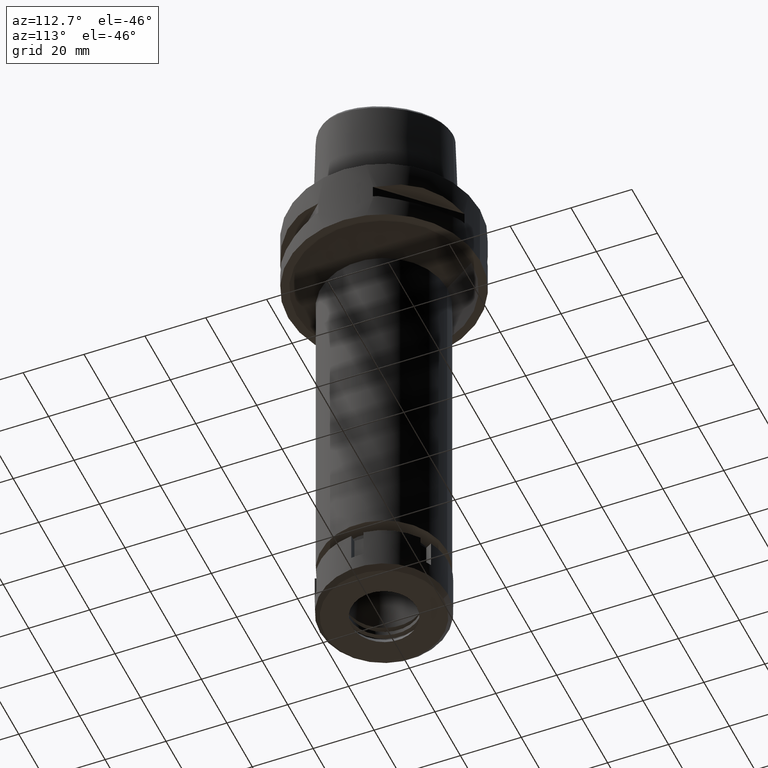
[diagram: clean part render]
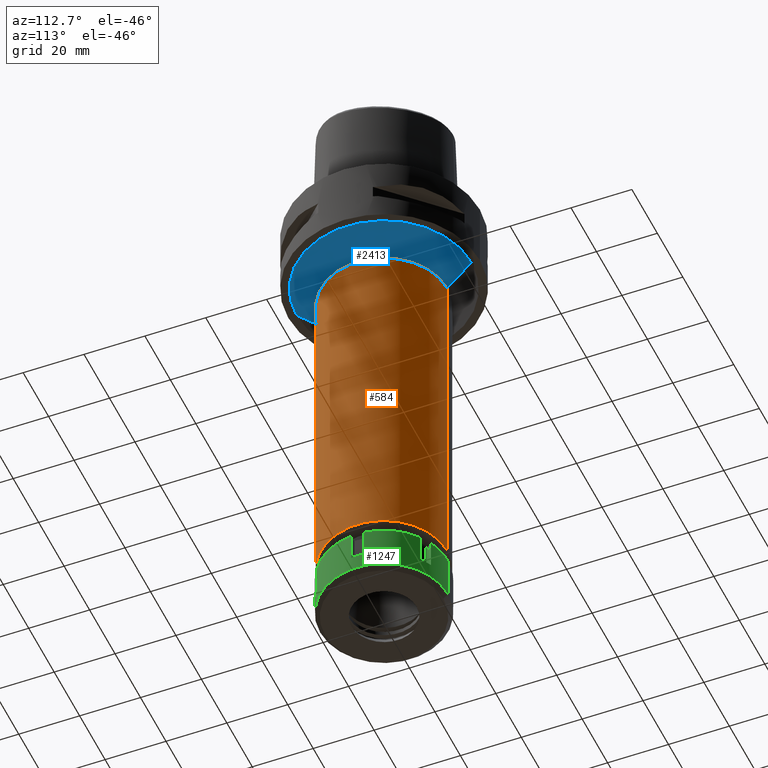
[diagram: same view with three faces highlighted in distinct colors, each labeled with its STEP entity id]
A machine part, auxiliary view with three faces highlighted in distinct colors.
Their STEP definitions:

[orange] entity #584 — the highlighted cylindrical surface (partial cylindrical patch) has radius 20.75 mm, axis along (0, 0, -1).
#584 = ADVANCED_FACE ( 'NONE', ( #4524 ), #4891, .T. ) ;
#853 = VECTOR ( 'NONE', #5563, 1000.000000000000000 ) ;
#879 = EDGE_CURVE ( 'NONE', #4517, #3945, #2536, .T. ) ;
#970 = ORIENTED_EDGE ( 'NONE', *, *, #2528, .T. ) ;
#1018 = CARTESIAN_POINT ( 'NONE',  ( 0.0000000000000000000, 1.320781572880000066E-14, 7.849999999999999645 ) ) ;
#1256 = DIRECTION ( 'NONE',  ( 0.0000000000000000000, 0.0000000000000000000, 1.000000000000000000 ) ) ;
#1379 = CARTESIAN_POINT ( 'NONE',  ( 0.0000000000000000000, 20.75000000000000000, -30.00000000000000000 ) ) ;
#1509 = CARTESIAN_POINT ( 'NONE',  ( 0.0000000000000000000, -20.75000000000000000, -30.00000000000000000 ) ) ;
#1637 = VERTEX_POINT ( 'NONE', #4268 ) ;
#1687 = DIRECTION ( 'NONE',  ( 0.0000000000000000000, 0.0000000000000000000, -1.000000000000000000 ) ) ;
#1725 = ORIENTED_EDGE ( 'NONE', *, *, #4151, .T. ) ;
#2013 = CIRCLE ( 'NONE', #5169, 20.75000000000000000 ) ;
#2153 = CARTESIAN_POINT ( 'NONE',  ( 0.0000000000000000000, 20.75000000000000000, -144.5000000000000000 ) ) ;
#2271 = VERTEX_POINT ( 'NONE', #3179 ) ;
#2486 = ORIENTED_EDGE ( 'NONE', *, *, #2988, .T. ) ;
#2528 = EDGE_CURVE ( 'NONE', #1637, #2271, #5379, .T. ) ;
#2536 = LINE ( 'NONE', #3003, #5241 ) ;
#2745 = DIRECTION ( 'NONE',  ( 0.0000000000000000000, -1.000000000000000000, 0.0000000000000000000 ) ) ;
#2988 = EDGE_CURVE ( 'NONE', #2271, #3945, #2013, .T. ) ;
#3003 = CARTESIAN_POINT ( 'NONE',  ( 0.0000000000000000000, 20.75000000000000000, -30.00000000000000000 ) ) ;
#3179 = CARTESIAN_POINT ( 'NONE',  ( 0.0000000000000000000, -20.75000000000000000, -144.5000000000000000 ) ) ;
#3397 = CIRCLE ( 'NONE', #4201, 20.75000000000000000 ) ;
#3505 = DIRECTION ( 'NONE',  ( 0.0000000000000000000, -1.000000000000000000, 0.0000000000000000000 ) ) ;
#3838 = CARTESIAN_POINT ( 'NONE',  ( 0.0000000000000000000, 1.320781572880000066E-14, -144.5000000000000000 ) ) ;
#3945 = VERTEX_POINT ( 'NONE', #2153 ) ;
#4151 = EDGE_CURVE ( 'NONE', #4517, #1637, #3397, .T. ) ;
#4180 = AXIS2_PLACEMENT_3D ( 'NONE', #1018, #4923, #2745 ) ;
#4201 = AXIS2_PLACEMENT_3D ( 'NONE', #4651, #4736, #5500 ) ;
#4268 = CARTESIAN_POINT ( 'NONE',  ( 0.0000000000000000000, -20.75000000000000000, -30.00000000000000000 ) ) ;
#4370 = EDGE_LOOP ( 'NONE', ( #1725, #970, #2486, #5028 ) ) ;
#4517 = VERTEX_POINT ( 'NONE', #1379 ) ;
#4524 = FACE_OUTER_BOUND ( 'NONE', #4370, .T. ) ;
#4651 = CARTESIAN_POINT ( 'NONE',  ( 0.0000000000000000000, 0.0000000000000000000, -30.00000000000000000 ) ) ;
#4736 = DIRECTION ( 'NONE',  ( 0.0000000000000000000, 0.0000000000000000000, -1.000000000000000000 ) ) ;
#4891 = CYLINDRICAL_SURFACE ( 'NONE', #4180, 20.75000000000000000 ) ;
#4923 = DIRECTION ( 'NONE',  ( 0.0000000000000000000, 0.0000000000000000000, -1.000000000000000000 ) ) ;
#5028 = ORIENTED_EDGE ( 'NONE', *, *, #879, .F. ) ;
#5169 = AXIS2_PLACEMENT_3D ( 'NONE', #3838, #1256, #3505 ) ;
#5241 = VECTOR ( 'NONE', #1687, 1000.000000000000000 ) ;
#5379 = LINE ( 'NONE', #1509, #853 ) ;
#5500 = DIRECTION ( 'NONE',  ( 0.0000000000000000000, 1.000000000000000000, 0.0000000000000000000 ) ) ;
#5563 = DIRECTION ( 'NONE',  ( 0.0000000000000000000, 0.0000000000000000000, -1.000000000000000000 ) ) ;

[blue] entity #2413 — the highlighted conical surface has half-angle 45 deg.
#175 = CARTESIAN_POINT ( 'NONE',  ( 0.0000000000000000000, 0.0000000000000000000, -22.00000000000000000 ) ) ;
#572 = AXIS2_PLACEMENT_3D ( 'NONE', #175, #1901, #1814 ) ;
#646 = EDGE_LOOP ( 'NONE', ( #4631, #4664, #4674, #5311 ) ) ;
#933 = EDGE_CURVE ( 'NONE', #3486, #4517, #5400, .T. ) ;
#1379 = CARTESIAN_POINT ( 'NONE',  ( 0.0000000000000000000, 20.75000000000000000, -30.00000000000000000 ) ) ;
#1393 = DIRECTION ( 'NONE',  ( 0.0000000000000000000, 1.000000000000000000, 0.0000000000000000000 ) ) ;
#1637 = VERTEX_POINT ( 'NONE', #4268 ) ;
#1726 = DIRECTION ( 'NONE',  ( 0.0000000000000000000, 0.7071067811865474617, -0.7071067811865474617 ) ) ;
#1814 = DIRECTION ( 'NONE',  ( 0.0000000000000000000, 1.000000000000000000, 0.0000000000000000000 ) ) ;
#1823 = AXIS2_PLACEMENT_3D ( 'NONE', #3171, #2735, #1393 ) ;
#1901 = DIRECTION ( 'NONE',  ( 0.0000000000000000000, 0.0000000000000000000, -1.000000000000000000 ) ) ;
#2413 = ADVANCED_FACE ( 'NONE', ( #5350 ), #3386, .T. ) ;
#2473 = DIRECTION ( 'NONE',  ( 0.0000000000000000000, -0.7071067811865474617, -0.7071067811865474617 ) ) ;
#2735 = DIRECTION ( 'NONE',  ( 0.0000000000000000000, 0.0000000000000000000, 1.000000000000000000 ) ) ;
#2773 = EDGE_CURVE ( 'NONE', #3486, #4514, #3111, .T. ) ;
#3111 = CIRCLE ( 'NONE', #572, 28.75000000000000000 ) ;
#3171 = CARTESIAN_POINT ( 'NONE',  ( 0.0000000000000000000, 0.0000000000000000000, -26.00000000000000000 ) ) ;
#3386 = CONICAL_SURFACE ( 'NONE', #1823, 24.75000000000000000, 0.7853981633972997312 ) ;
#3397 = CIRCLE ( 'NONE', #4201, 20.75000000000000000 ) ;
#3486 = VERTEX_POINT ( 'NONE', #3858 ) ;
#3858 = CARTESIAN_POINT ( 'NONE',  ( 0.0000000000000000000, 28.75000000000000000, -22.00000000000000000 ) ) ;
#3943 = CARTESIAN_POINT ( 'NONE',  ( 0.0000000000000000000, -28.75000000000000000, -22.00000000000000000 ) ) ;
#4151 = EDGE_CURVE ( 'NONE', #4517, #1637, #3397, .T. ) ;
#4201 = AXIS2_PLACEMENT_3D ( 'NONE', #4651, #4736, #5500 ) ;
#4268 = CARTESIAN_POINT ( 'NONE',  ( 0.0000000000000000000, -20.75000000000000000, -30.00000000000000000 ) ) ;
#4364 = EDGE_CURVE ( 'NONE', #4514, #1637, #5063, .T. ) ;
#4514 = VERTEX_POINT ( 'NONE', #3943 ) ;
#4517 = VERTEX_POINT ( 'NONE', #1379 ) ;
#4631 = ORIENTED_EDGE ( 'NONE', *, *, #2773, .T. ) ;
#4651 = CARTESIAN_POINT ( 'NONE',  ( 0.0000000000000000000, 0.0000000000000000000, -30.00000000000000000 ) ) ;
#4664 = ORIENTED_EDGE ( 'NONE', *, *, #4364, .T. ) ;
#4674 = ORIENTED_EDGE ( 'NONE', *, *, #4151, .F. ) ;
#4736 = DIRECTION ( 'NONE',  ( 0.0000000000000000000, 0.0000000000000000000, -1.000000000000000000 ) ) ;
#5063 = LINE ( 'NONE', #5476, #5360 ) ;
#5311 = ORIENTED_EDGE ( 'NONE', *, *, #933, .F. ) ;
#5350 = FACE_OUTER_BOUND ( 'NONE', #646, .T. ) ;
#5360 = VECTOR ( 'NONE', #1726, 1000.000000000000114 ) ;
#5400 = LINE ( 'NONE', #5482, #5503 ) ;
#5476 = CARTESIAN_POINT ( 'NONE',  ( 0.0000000000000000000, -28.75000000000000000, -22.00000000000000000 ) ) ;
#5482 = CARTESIAN_POINT ( 'NONE',  ( 0.0000000000000000000, 28.75000000000000000, -22.00000000000000000 ) ) ;
#5500 = DIRECTION ( 'NONE',  ( 0.0000000000000000000, 1.000000000000000000, 0.0000000000000000000 ) ) ;
#5503 = VECTOR ( 'NONE', #2473, 1000.000000000000114 ) ;

[green] entity #1247 — the highlighted cylindrical surface (partial cylindrical patch) has radius 21 mm, axis along (0, 0, -1).
#18 = ORIENTED_EDGE ( 'NONE', *, *, #2069, .F. ) ;
#29 = CIRCLE ( 'NONE', #1023, 20.99999999999999645 ) ;
#77 = DIRECTION ( 'NONE',  ( 0.0000000000000000000, -1.000000000000000000, 0.0000000000000000000 ) ) ;
#94 = VERTEX_POINT ( 'NONE', #2562 ) ;
#164 = DIRECTION ( 'NONE',  ( 0.4152486510768949035, -0.9097079519157886818, 0.0000000000000000000 ) ) ;
#168 = CARTESIAN_POINT ( 'NONE',  ( 12.18432328774999895, 17.10386699022999935, 0.0000000000000000000 ) ) ;
#170 = VERTEX_POINT ( 'NONE', #896 ) ;
#180 = DIRECTION ( 'NONE',  ( 0.9954545219222313834, 0.09523809523810303213, 0.0000000000000000000 ) ) ;
#190 = CARTESIAN_POINT ( 'NONE',  ( 0.0000000000000000000, 0.0000000000000000000, -9.500000000000000000 ) ) ;
#218 = VECTOR ( 'NONE', #728, 1000.000000000000000 ) ;
#300 = AXIS2_PLACEMENT_3D ( 'NONE', #190, #5306, #4975 ) ;
#307 = ORIENTED_EDGE ( 'NONE', *, *, #4176, .T. ) ;
#343 = ORIENTED_EDGE ( 'NONE', *, *, #1764, .F. ) ;
#435 = CARTESIAN_POINT ( 'NONE',  ( 0.0000000000000000000, 0.0000000000000000000, 0.0000000000000000000 ) ) ;
#462 = CARTESIAN_POINT ( 'NONE',  ( 0.0000000000000000000, 0.0000000000000000000, -9.500000000000000000 ) ) ;
#681 = AXIS2_PLACEMENT_3D ( 'NONE', #435, #3835, #1648 ) ;
#728 = DIRECTION ( 'NONE',  ( 0.0000000000000000000, 0.0000000000000000000, -1.000000000000000000 ) ) ;
#744 = VERTEX_POINT ( 'NONE', #850 ) ;
#751 = EDGE_CURVE ( 'NONE', #744, #1508, #5542, .T. ) ;
#806 = CARTESIAN_POINT ( 'NONE',  ( 12.18432328774999895, -17.10386699022999935, 0.0000000000000000000 ) ) ;
#850 = CARTESIAN_POINT ( 'NONE',  ( 0.0000000000000000000, 21.00000000000000000, 0.0000000000000000000 ) ) ;
#896 = CARTESIAN_POINT ( 'NONE',  ( 8.720221672615000585, 19.10386699022999935, 0.0000000000000000000 ) ) ;
#1005 = CARTESIAN_POINT ( 'NONE',  ( 0.0000000000000000000, -21.00000000000000000, -14.50000000000000000 ) ) ;
#1023 = AXIS2_PLACEMENT_3D ( 'NONE', #3052, #1729, #2185 ) ;
#1104 = CARTESIAN_POINT ( 'NONE',  ( 20.90454496036999998, 2.000000000000000000, -9.500000000000000000 ) ) ;
#1107 = CIRCLE ( 'NONE', #4276, 20.99999999999999289 ) ;
#1247 = ADVANCED_FACE ( 'NONE', ( #3959 ), #3936, .T. ) ;
#1273 = CARTESIAN_POINT ( 'NONE',  ( 12.18432328774999895, -17.10386699022999935, -9.500000000000000000 ) ) ;
#1330 = VERTEX_POINT ( 'NONE', #1372 ) ;
#1372 = CARTESIAN_POINT ( 'NONE',  ( 20.90454496036999998, -2.000000000000000000, -9.500000000000000000 ) ) ;
#1380 = VERTEX_POINT ( 'NONE', #806 ) ;
#1389 = EDGE_CURVE ( 'NONE', #4606, #1380, #4986, .T. ) ;
#1450 = CARTESIAN_POINT ( 'NONE',  ( 8.720221672615000585, -19.10386699022999935, 0.0000000000000000000 ) ) ;
#1508 = VERTEX_POINT ( 'NONE', #4693 ) ;
#1554 = VECTOR ( 'NONE', #4036, 1000.000000000000000 ) ;
#1562 = CIRCLE ( 'NONE', #4457, 21.00000000000000711 ) ;
#1648 = DIRECTION ( 'NONE',  ( 0.0000000000000000000, 1.000000000000000000, 0.0000000000000000000 ) ) ;
#1665 = CARTESIAN_POINT ( 'NONE',  ( 0.0000000000000000000, 0.0000000000000000000, 0.0000000000000000000 ) ) ;
#1729 = DIRECTION ( 'NONE',  ( 0.0000000000000000000, 0.0000000000000000000, -1.000000000000000000 ) ) ;
#1764 = EDGE_CURVE ( 'NONE', #4606, #1330, #4880, .T. ) ;
#1773 = CARTESIAN_POINT ( 'NONE',  ( 8.720221672615000585, 19.10386699022999935, -9.500000000000000000 ) ) ;
#1871 = ORIENTED_EDGE ( 'NONE', *, *, #4533, .T. ) ;
#1874 = VERTEX_POINT ( 'NONE', #1005 ) ;
#2069 = EDGE_CURVE ( 'NONE', #3116, #170, #3041, .T. ) ;
#2095 = DIRECTION ( 'NONE',  ( 0.0000000000000000000, 0.0000000000000000000, 1.000000000000000000 ) ) ;
#2096 = AXIS2_PLACEMENT_3D ( 'NONE', #3601, #5276, #164 ) ;
#2185 = DIRECTION ( 'NONE',  ( 0.5802058708454290725, 0.8144698566776411575, 0.0000000000000000000 ) ) ;
#2241 = EDGE_CURVE ( 'NONE', #3105, #3848, #3738, .T. ) ;
#2257 = EDGE_CURVE ( 'NONE', #4937, #3733, #2831, .T. ) ;
#2380 = DIRECTION ( 'NONE',  ( 0.0000000000000000000, 0.0000000000000000000, 1.000000000000000000 ) ) ;
#2417 = EDGE_CURVE ( 'NONE', #3902, #1330, #1107, .T. ) ;
#2562 = CARTESIAN_POINT ( 'NONE',  ( 20.90454496036999998, 2.000000000000000000, 0.0000000000000000000 ) ) ;
#2669 = VECTOR ( 'NONE', #2380, 1000.000000000000000 ) ;
#2736 = VECTOR ( 'NONE', #4757, 1000.000000000000000 ) ;
#2798 = CARTESIAN_POINT ( 'NONE',  ( 8.720221672615000585, -19.10386699022999935, -9.500000000000000000 ) ) ;
#2821 = ORIENTED_EDGE ( 'NONE', *, *, #751, .F. ) ;
#2831 = CIRCLE ( 'NONE', #300, 21.00000000000000711 ) ;
#2852 = EDGE_CURVE ( 'NONE', #3330, #94, #29, .T. ) ;
#2898 = LINE ( 'NONE', #3385, #5254 ) ;
#2907 = EDGE_CURVE ( 'NONE', #3116, #5544, #1562, .T. ) ;
#2925 = AXIS2_PLACEMENT_3D ( 'NONE', #1665, #3822, #5109 ) ;
#2938 = DIRECTION ( 'NONE',  ( 0.4152486510768949035, 0.9097079519157886818, 0.0000000000000000000 ) ) ;
#2942 = ORIENTED_EDGE ( 'NONE', *, *, #2852, .T. ) ;
#2946 = ORIENTED_EDGE ( 'NONE', *, *, #2257, .T. ) ;
#3041 = LINE ( 'NONE', #1773, #2736 ) ;
#3052 = CARTESIAN_POINT ( 'NONE',  ( 0.0000000000000000000, 0.0000000000000000000, 0.0000000000000000000 ) ) ;
#3069 = CARTESIAN_POINT ( 'NONE',  ( 20.90454496036999998, 2.000000000000000000, -9.500000000000000000 ) ) ;
#3105 = VERTEX_POINT ( 'NONE', #3967 ) ;
#3116 = VERTEX_POINT ( 'NONE', #5207 ) ;
#3121 = CIRCLE ( 'NONE', #681, 21.00000000000000000 ) ;
#3130 = DIRECTION ( 'NONE',  ( 0.0000000000000000000, 0.0000000000000000000, -1.000000000000000000 ) ) ;
#3148 = LINE ( 'NONE', #1450, #5095 ) ;
#3185 = EDGE_LOOP ( 'NONE', ( #4765, #2942, #4451, #4694, #343, #4709, #5010, #2946, #5020, #5086, #1871, #307, #2821, #4220, #18, #4182 ) ) ;
#3300 = LINE ( 'NONE', #168, #218 ) ;
#3304 = CIRCLE ( 'NONE', #3927, 21.00000000000000000 ) ;
#3330 = VERTEX_POINT ( 'NONE', #4642 ) ;
#3343 = EDGE_CURVE ( 'NONE', #4937, #1380, #2898, .T. ) ;
#3385 = CARTESIAN_POINT ( 'NONE',  ( 12.18432328774999895, -17.10386699022999935, -9.500000000000000000 ) ) ;
#3453 = DIRECTION ( 'NONE',  ( 0.0000000000000000000, 0.0000000000000000000, -1.000000000000000000 ) ) ;
#3601 = CARTESIAN_POINT ( 'NONE',  ( 0.0000000000000000000, 0.0000000000000000000, 0.0000000000000000000 ) ) ;
#3642 = CARTESIAN_POINT ( 'NONE',  ( 20.90454496036999998, -2.000000000000000000, 0.0000000000000000000 ) ) ;
#3717 = EDGE_CURVE ( 'NONE', #3105, #3733, #3148, .T. ) ;
#3733 = VERTEX_POINT ( 'NONE', #2798 ) ;
#3738 = CIRCLE ( 'NONE', #2096, 21.00000000000000711 ) ;
#3757 = VECTOR ( 'NONE', #3130, 1000.000000000000000 ) ;
#3822 = DIRECTION ( 'NONE',  ( 0.0000000000000000000, 0.0000000000000000000, -1.000000000000000000 ) ) ;
#3835 = DIRECTION ( 'NONE',  ( 0.0000000000000000000, 0.0000000000000000000, -1.000000000000000000 ) ) ;
#3848 = VERTEX_POINT ( 'NONE', #4544 ) ;
#3850 = CARTESIAN_POINT ( 'NONE',  ( 0.0000000000000000000, 21.00000000000000000, 0.0000000000000000000 ) ) ;
#3890 = DIRECTION ( 'NONE',  ( 0.0000000000000000000, -1.000000000000000000, 0.0000000000000000000 ) ) ;
#3902 = VERTEX_POINT ( 'NONE', #3069 ) ;
#3910 = VECTOR ( 'NONE', #3453, 1000.000000000000000 ) ;
#3918 = DIRECTION ( 'NONE',  ( 0.0000000000000000000, 0.0000000000000000000, -1.000000000000000000 ) ) ;
#3927 = AXIS2_PLACEMENT_3D ( 'NONE', #5172, #2095, #3890 ) ;
#3936 = CYLINDRICAL_SURFACE ( 'NONE', #4632, 21.00000000000000000 ) ;
#3959 = FACE_OUTER_BOUND ( 'NONE', #3185, .T. ) ;
#3966 = CARTESIAN_POINT ( 'NONE',  ( 20.90454496036999998, -2.000000000000000000, 0.0000000000000000000 ) ) ;
#3967 = CARTESIAN_POINT ( 'NONE',  ( 8.720221672615000585, -19.10386699022999935, 0.0000000000000000000 ) ) ;
#4022 = LINE ( 'NONE', #4815, #3757 ) ;
#4036 = DIRECTION ( 'NONE',  ( 0.0000000000000000000, 0.0000000000000000000, -1.000000000000000000 ) ) ;
#4038 = DIRECTION ( 'NONE',  ( 0.0000000000000000000, 0.0000000000000000000, -1.000000000000000000 ) ) ;
#4043 = CARTESIAN_POINT ( 'NONE',  ( 12.18432328774999895, 17.10386699022999935, -9.500000000000000000 ) ) ;
#4176 = EDGE_CURVE ( 'NONE', #1874, #1508, #3304, .T. ) ;
#4182 = ORIENTED_EDGE ( 'NONE', *, *, #2907, .T. ) ;
#4220 = ORIENTED_EDGE ( 'NONE', *, *, #4265, .T. ) ;
#4247 = DIRECTION ( 'NONE',  ( 0.0000000000000000000, 0.0000000000000000000, 1.000000000000000000 ) ) ;
#4265 = EDGE_CURVE ( 'NONE', #744, #170, #3121, .T. ) ;
#4276 = AXIS2_PLACEMENT_3D ( 'NONE', #4407, #4038, #180 ) ;
#4407 = CARTESIAN_POINT ( 'NONE',  ( 0.0000000000000000000, 0.0000000000000000000, -9.500000000000000000 ) ) ;
#4451 = ORIENTED_EDGE ( 'NONE', *, *, #4645, .F. ) ;
#4457 = AXIS2_PLACEMENT_3D ( 'NONE', #462, #3918, #2938 ) ;
#4533 = EDGE_CURVE ( 'NONE', #3848, #1874, #4022, .T. ) ;
#4544 = CARTESIAN_POINT ( 'NONE',  ( 0.0000000000000000000, -21.00000000000000000, 0.0000000000000000000 ) ) ;
#4606 = VERTEX_POINT ( 'NONE', #3966 ) ;
#4632 = AXIS2_PLACEMENT_3D ( 'NONE', #5197, #5140, #77 ) ;
#4642 = CARTESIAN_POINT ( 'NONE',  ( 12.18432328774999895, 17.10386699022999935, 0.0000000000000000000 ) ) ;
#4645 = EDGE_CURVE ( 'NONE', #3902, #94, #5008, .T. ) ;
#4678 = EDGE_CURVE ( 'NONE', #3330, #5544, #3300, .T. ) ;
#4693 = CARTESIAN_POINT ( 'NONE',  ( 0.0000000000000000000, 21.00000000000000000, -14.50000000000000000 ) ) ;
#4694 = ORIENTED_EDGE ( 'NONE', *, *, #2417, .T. ) ;
#4709 = ORIENTED_EDGE ( 'NONE', *, *, #1389, .T. ) ;
#4757 = DIRECTION ( 'NONE',  ( 0.0000000000000000000, 0.0000000000000000000, 1.000000000000000000 ) ) ;
#4765 = ORIENTED_EDGE ( 'NONE', *, *, #4678, .F. ) ;
#4815 = CARTESIAN_POINT ( 'NONE',  ( 0.0000000000000000000, -21.00000000000000000, 0.0000000000000000000 ) ) ;
#4880 = LINE ( 'NONE', #3642, #1554 ) ;
#4937 = VERTEX_POINT ( 'NONE', #1273 ) ;
#4975 = DIRECTION ( 'NONE',  ( 0.5802058708453158298, -0.8144698566777217597, 0.0000000000000000000 ) ) ;
#4986 = CIRCLE ( 'NONE', #2925, 20.99999999999999289 ) ;
#5008 = LINE ( 'NONE', #1104, #2669 ) ;
#5010 = ORIENTED_EDGE ( 'NONE', *, *, #3343, .F. ) ;
#5020 = ORIENTED_EDGE ( 'NONE', *, *, #3717, .F. ) ;
#5086 = ORIENTED_EDGE ( 'NONE', *, *, #2241, .T. ) ;
#5095 = VECTOR ( 'NONE', #5298, 1000.000000000000000 ) ;
#5109 = DIRECTION ( 'NONE',  ( 0.9954545219222313834, -0.09523809523810303213, 0.0000000000000000000 ) ) ;
#5140 = DIRECTION ( 'NONE',  ( 0.0000000000000000000, 0.0000000000000000000, -1.000000000000000000 ) ) ;
#5172 = CARTESIAN_POINT ( 'NONE',  ( 0.0000000000000000000, 0.0000000000000000000, -14.50000000000000000 ) ) ;
#5197 = CARTESIAN_POINT ( 'NONE',  ( 0.0000000000000000000, 0.0000000000000000000, 0.0000000000000000000 ) ) ;
#5207 = CARTESIAN_POINT ( 'NONE',  ( 8.720221672615998898, 19.10386699022999935, -9.500000000000000000 ) ) ;
#5254 = VECTOR ( 'NONE', #4247, 1000.000000000000000 ) ;
#5276 = DIRECTION ( 'NONE',  ( 0.0000000000000000000, 0.0000000000000000000, -1.000000000000000000 ) ) ;
#5298 = DIRECTION ( 'NONE',  ( 0.0000000000000000000, 0.0000000000000000000, -1.000000000000000000 ) ) ;
#5306 = DIRECTION ( 'NONE',  ( 0.0000000000000000000, 0.0000000000000000000, -1.000000000000000000 ) ) ;
#5542 = LINE ( 'NONE', #3850, #3910 ) ;
#5544 = VERTEX_POINT ( 'NONE', #4043 ) ;